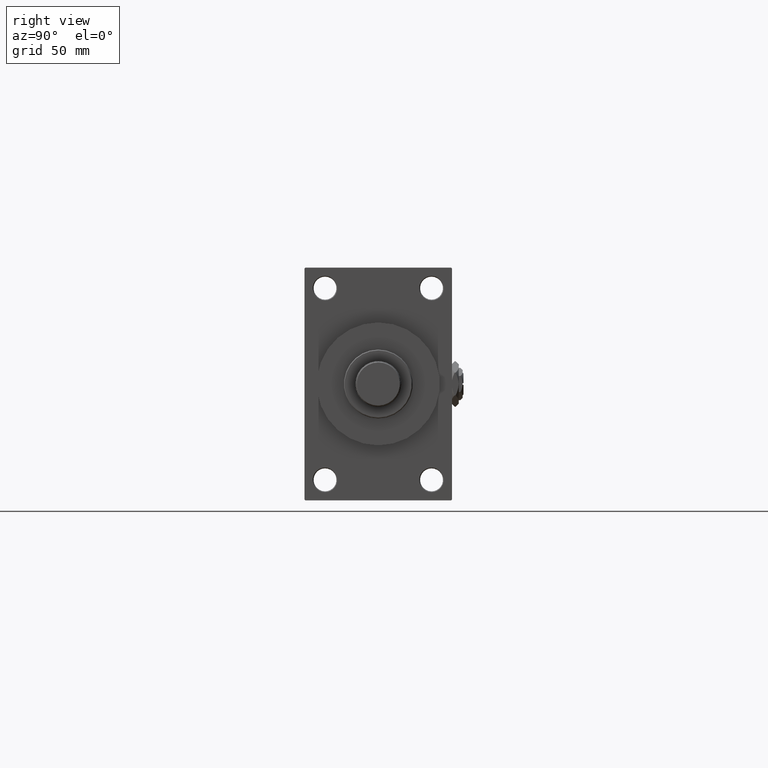
[diagram: clean part render]
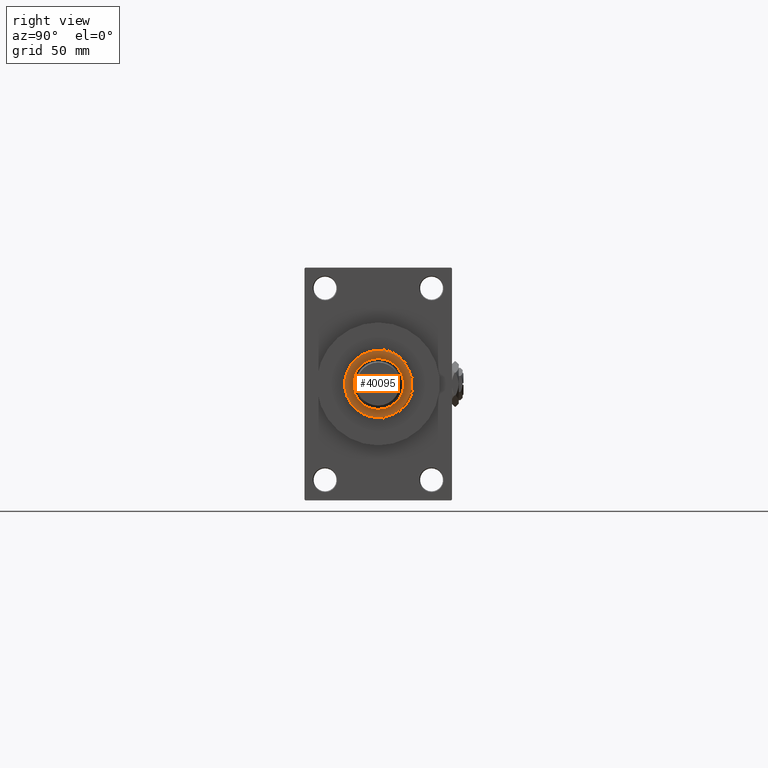
[diagram: same view with one face highlighted and labeled with its STEP entity id]
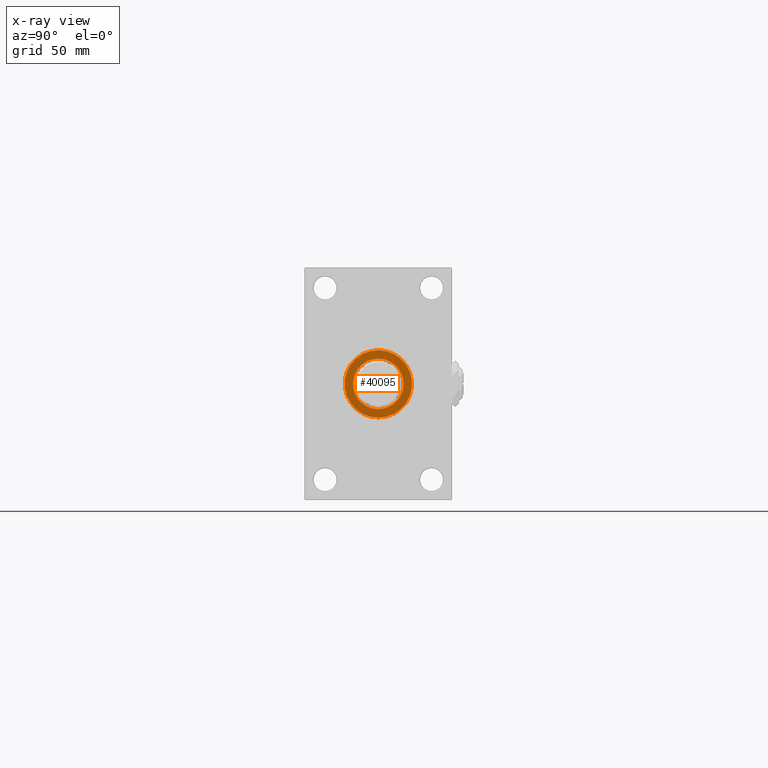
[diagram: x-ray of the same camera — body ghosted, the highlighted face saturated]
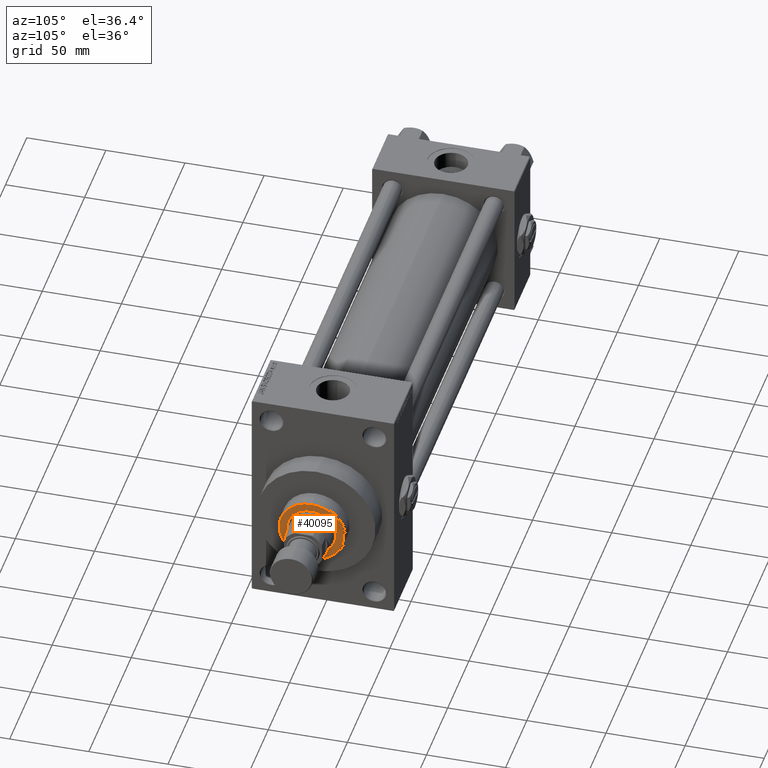
[diagram: same view with one face highlighted and labeled with its STEP entity id]
A machine part, right view. The second image highlights one B-rep face of the part: STEP entity #40095.
The next image is the same camera in x-ray: the body ghosted, the highlighted face saturated — about 0% of this face is hidden behind the body in this view.
A second angle (auxiliary view) of the same face is appended — the face is thin or edge-on in the first view.
In plain terms, the highlighted planar face has unit normal (1, -0, -0).
Its self-contained STEP definition (entity closure, byte-faithful):
#225 = EDGE_CURVE ( 'NONE', #6353, #36524, #31145, .T. ) ;
#1417 = AXIS2_PLACEMENT_3D ( 'NONE', #3838, #49137, #38552 ) ;
#3838 = CARTESIAN_POINT ( 'NONE',  ( 0.000000000000000000, 0.000000000000000000, 54.26000000000000512 ) ) ;
#4370 = EDGE_CURVE ( 'NONE', #36524, #6353, #21674, .T. ) ;
#6353 = VERTEX_POINT ( 'NONE', #41949 ) ;
#7470 = FACE_BOUND ( 'NONE', #16859, .T. ) ;
#9059 = DIRECTION ( 'NONE',  ( 0.000000000000000000, 0.000000000000000000, 1.000000000000000000 ) ) ;
#16074 = ORIENTED_EDGE ( 'NONE', *, *, #225, .T. ) ;
#16859 = EDGE_LOOP ( 'NONE', ( #31967, #38995 ) ) ;
#17159 = CARTESIAN_POINT ( 'NONE',  ( 15.50000000000000000, 0.000000000000000000, 54.26000000000000512 ) ) ;
#18536 = DIRECTION ( 'NONE',  ( 0.000000000000000000, 0.000000000000000000, 1.000000000000000000 ) ) ;
#19287 = CARTESIAN_POINT ( 'NONE',  ( 0.000000000000000000, 0.000000000000000000, 54.26000000000000512 ) ) ;
#20062 = AXIS2_PLACEMENT_3D ( 'NONE', #37401, #34625, #49730 ) ;
#20744 = EDGE_CURVE ( 'NONE', #36710, #36694, #44787, .T. ) ;
#21674 = CIRCLE ( 'NONE', #20062, 20.50000000000001776 ) ;
#22812 = DIRECTION ( 'NONE',  ( 1.000000000000000000, 0.000000000000000000, 0.000000000000000000 ) ) ;
#23059 = CARTESIAN_POINT ( 'NONE',  ( 0.000000000000000000, 0.000000000000000000, 54.26000000000000512 ) ) ;
#23385 = CIRCLE ( 'NONE', #25781, 15.50000000000000000 ) ;
#25363 = CARTESIAN_POINT ( 'NONE',  ( 0.000000000000000000, 0.000000000000000000, 54.26000000000000512 ) ) ;
#25781 = AXIS2_PLACEMENT_3D ( 'NONE', #19287, #46468, #22812 ) ;
#31145 = CIRCLE ( 'NONE', #40781, 20.50000000000001776 ) ;
#31796 = EDGE_CURVE ( 'NONE', #36694, #36710, #23385, .T. ) ;
#31967 = ORIENTED_EDGE ( 'NONE', *, *, #31796, .F. ) ;
#32177 = DIRECTION ( 'NONE',  ( 1.000000000000000000, 0.000000000000000000, 0.000000000000000000 ) ) ;
#33871 = DIRECTION ( 'NONE',  ( 1.000000000000000000, 0.000000000000000000, -0.000000000000000000 ) ) ;
#34625 = DIRECTION ( 'NONE',  ( 0.000000000000000000, 0.000000000000000000, 1.000000000000000000 ) ) ;
#35292 = CARTESIAN_POINT ( 'NONE',  ( -20.50000000000001776, 0.000000000000000000, 54.26000000000000512 ) ) ;
#35755 = AXIS2_PLACEMENT_3D ( 'NONE', #23059, #18536, #33871 ) ;
#35795 = CARTESIAN_POINT ( 'NONE',  ( -15.50000000000000000, 1.898202538678397557E-15, 54.26000000000000512 ) ) ;
#36524 = VERTEX_POINT ( 'NONE', #35292 ) ;
#36694 = VERTEX_POINT ( 'NONE', #17159 ) ;
#36710 = VERTEX_POINT ( 'NONE', #35795 ) ;
#37401 = CARTESIAN_POINT ( 'NONE',  ( 0.000000000000000000, 0.000000000000000000, 54.26000000000000512 ) ) ;
#38552 = DIRECTION ( 'NONE',  ( 1.000000000000000000, 0.000000000000000000, 0.000000000000000000 ) ) ;
#38995 = ORIENTED_EDGE ( 'NONE', *, *, #20744, .F. ) ;
#40095 = ADVANCED_FACE ( 'NONE', ( #7470, #45712 ), #46208, .T. ) ;
#40781 = AXIS2_PLACEMENT_3D ( 'NONE', #25363, #9059, #32177 ) ;
#41549 = EDGE_LOOP ( 'NONE', ( #45094, #16074 ) ) ;
#41949 = CARTESIAN_POINT ( 'NONE',  ( 20.50000000000001776, 2.541142108230759057E-15, 54.26000000000000512 ) ) ;
#44787 = CIRCLE ( 'NONE', #1417, 15.50000000000000000 ) ;
#45094 = ORIENTED_EDGE ( 'NONE', *, *, #4370, .T. ) ;
#45712 = FACE_OUTER_BOUND ( 'NONE', #41549, .T. ) ;
#46208 = PLANE ( 'NONE',  #35755 ) ;
#46468 = DIRECTION ( 'NONE',  ( 0.000000000000000000, 0.000000000000000000, 1.000000000000000000 ) ) ;
#49137 = DIRECTION ( 'NONE',  ( 0.000000000000000000, 0.000000000000000000, 1.000000000000000000 ) ) ;
#49730 = DIRECTION ( 'NONE',  ( 1.000000000000000000, 0.000000000000000000, 0.000000000000000000 ) ) ;